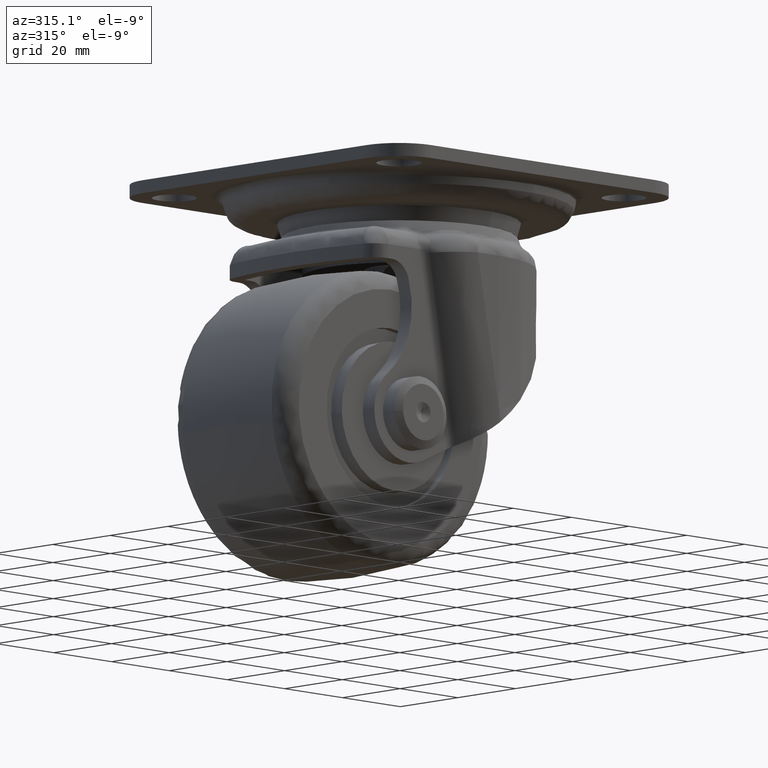
[diagram: clean part render]
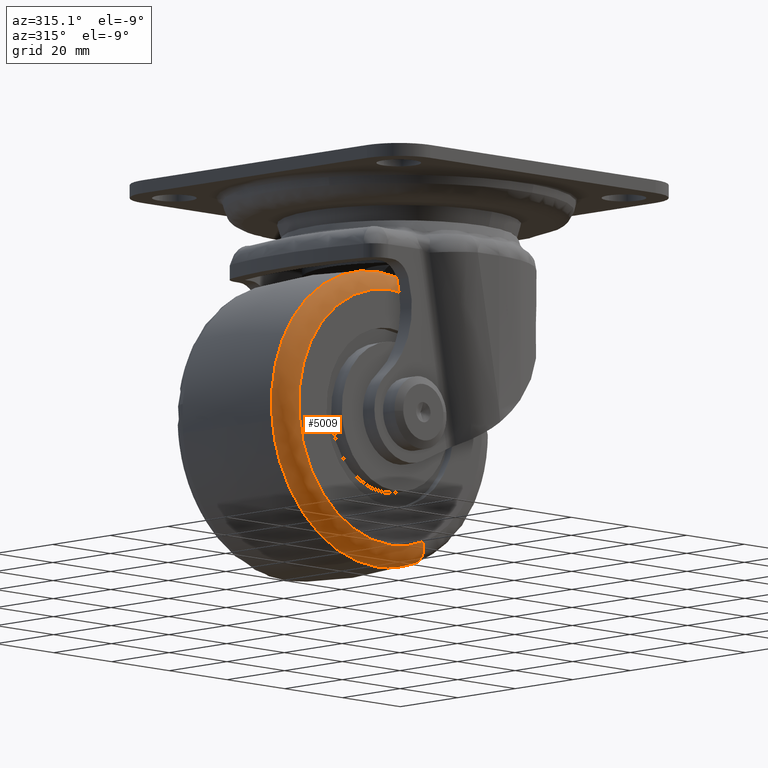
[diagram: same view with one face highlighted and labeled with its STEP entity id]
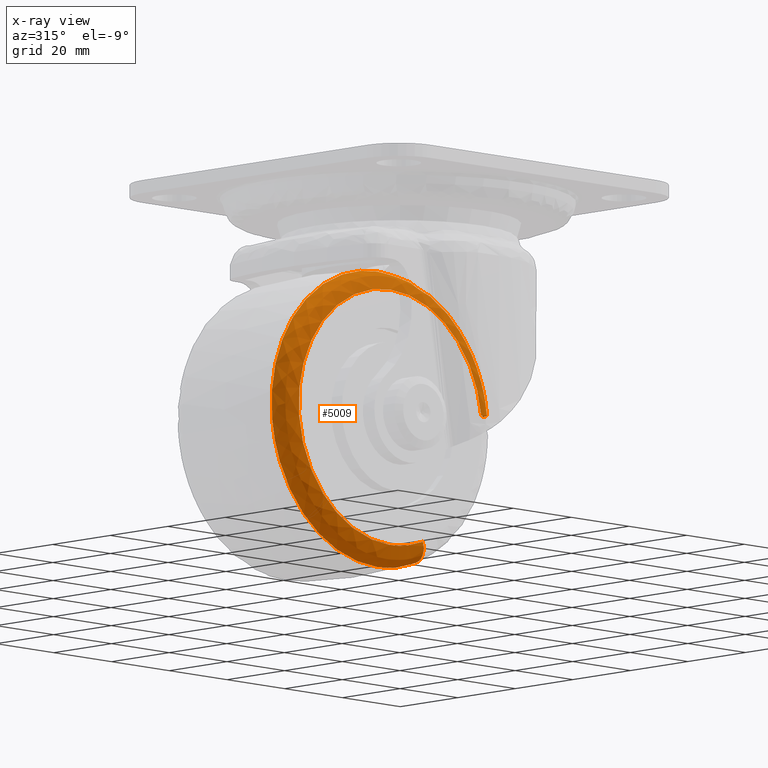
[diagram: x-ray of the same camera — body ghosted, the highlighted face saturated]
A machine part, auxiliary view. The second image highlights one B-rep face of the part: STEP entity #5009.
The next image is the same camera in x-ray: the body ghosted, the highlighted face saturated — about 0% of this face is hidden behind the body in this view.
In plain terms, the highlighted face is a freeform B-spline surface patch.
Its self-contained STEP definition (entity closure, byte-faithful):
#4833=CARTESIAN_POINT('',(11.115937061219032,-19.989068047017039,-91.857588027887104));
#4834=CARTESIAN_POINT('',(7.631200202151816,-19.989068047017046,-93.177046409941710));
#4835=CARTESIAN_POINT('',(3.934409698692773,-19.989068047017035,-93.644059656489191));
#4836=CARTESIAN_POINT('',(-27.209649957796408,-19.989068047017042,-97.578469355181980));
#4837=CARTESIAN_POINT('',(-31.144059656489194,-19.989068047017035,-66.434409698692775));
#4838=CARTESIAN_POINT('',(-35.078469355181966,-19.989068047017042,-35.290350042203592));
#4839=CARTESIAN_POINT('',(-3.934409698692778,-19.989068047017035,-31.355940343510809));
#4840=CARTESIAN_POINT('',(27.209649957796408,-19.989068047017042,-27.421530644818034));
#4841=CARTESIAN_POINT('',(31.144059656489194,-19.989068047017035,-58.565590301307232));
#4842=CARTESIAN_POINT('',(12.933482007921048,-20.329040989270091,-96.657789349069702));
#4843=CARTESIAN_POINT('',(8.878962697414757,-20.329040989270087,-98.192989769018112));
#4844=CARTESIAN_POINT('',(4.577717269321483,-20.329040989270080,-98.736363430493313));
#4845=CARTESIAN_POINT('',(-31.658646161171827,-20.329040989270084,-103.314080699814800));
#4846=CARTESIAN_POINT('',(-36.236363430493320,-20.329040989270080,-67.077717269321468));
#4847=CARTESIAN_POINT('',(-40.814080699814788,-20.329040989270084,-30.841353838828176));
#4848=CARTESIAN_POINT('',(-4.577717269321486,-20.329040989270080,-26.263636569506669));
#4849=CARTESIAN_POINT('',(31.658646161171827,-20.329040989270084,-21.685919300185191));
#4850=CARTESIAN_POINT('',(36.236363430493320,-20.329040989270080,-57.922282730678496));
#4851=CARTESIAN_POINT('',(13.002219455426241,-15.188680782614982,-96.839327410578392));
#4852=CARTESIAN_POINT('',(8.926151631681668,-15.188680782614982,-98.382686944848189));
#4853=CARTESIAN_POINT('',(4.602046417520002,-15.188680782614981,-98.928948468888791));
#4854=CARTESIAN_POINT('',(-31.826902051368769,-15.188680782614984,-103.530994886408780));
#4855=CARTESIAN_POINT('',(-36.428948468888791,-15.188680782614981,-67.102046417520015));
#4856=CARTESIAN_POINT('',(-41.030994886408777,-15.188680782614984,-30.673097948631227));
#4857=CARTESIAN_POINT('',(-4.602046417520007,-15.188680782614981,-26.071051531111220));
#4858=CARTESIAN_POINT('',(31.826902051368769,-15.188680782614984,-21.469005113591223));
#4859=CARTESIAN_POINT('',(36.428948468888791,-15.188680782614981,-57.897953582479992));
#4867=(BOUNDED_SURFACE()B_SPLINE_SURFACE(2,2,((#4833,#4842,#4851),(#4834,#4843,#4852),(#4835,#4844,#4853),(#4836,#4845,#4854),(#4837,#4846,#4855),(#4838,#4847,#4856),(#4839,#4848,#4857),(#4840,#4849,#4858),(#4841,#4850,#4859)),.UNSPECIFIED.,.F.,.F.,.U.)B_SPLINE_SURFACE_WITH_KNOTS((3,2,2,2,3),(3,3),(0.0,9.733948382419614,70.571125772542146,131.408303162664710,192.245480552787200),(0.0,8.451082989407627),.UNSPECIFIED.)GEOMETRIC_REPRESENTATION_ITEM()RATIONAL_B_SPLINE_SURFACE(((0.840444799128825,0.586928940874387,0.843723086104946),(0.869515823441516,0.607230839973135,0.872907506515139),(0.912267329783709,0.637086573941883,0.915825771824246),(0.645070415145005,0.450488236637210,0.647586613642328),(0.912267329783709,0.637086573941883,0.915825771824246),(0.645070415145005,0.450488236637210,0.647586613642328),(0.912267329783709,0.637086573941883,0.915825771824246),(0.645070415145005,0.450488236637210,0.647586613642328),(0.912267329783709,0.637086573941883,0.915825771824246)))REPRESENTATION_ITEM('')SURFACE());
#4868=CARTESIAN_POINT('',(11.232952755055830,-20.0,-92.166630667084220));
#4869=VERTEX_POINT('',#4868);
#4870=CARTESIAN_POINT('',(0.0,-20.0,-94.222046000000091));
#4871=VERTEX_POINT('',#4870);
#4872=CARTESIAN_POINT('',(11.232952755055837,-20.000000000000004,-92.166630667084220));
#4873=CARTESIAN_POINT('',(5.804527208199742,-20.0,-94.222046000000091));
#4874=CARTESIAN_POINT('',(0.0,-20.0,-94.222046000000091));
#4882=(BOUNDED_CURVE()B_SPLINE_CURVE(2,(#4872,#4873,#4874),.UNSPECIFIED.,.F.,.U.)B_SPLINE_CURVE_WITH_KNOTS((3,3),(0.439864366381399,0.500000000000000),.UNSPECIFIED.)CURVE()GEOMETRIC_REPRESENTATION_ITEM()RATIONAL_B_SPLINE_CURVE((0.892987465344108,0.929546722816247,1.0))REPRESENTATION_ITEM(''));
#4883=EDGE_CURVE('',#4869,#4871,#4882,.T.);
#4884=ORIENTED_EDGE('',*,*,#4883,.T.);
#4885=CARTESIAN_POINT('',(0.0,-20.0,-30.777953999999909));
#4886=VERTEX_POINT('',#4885);
#4887=CARTESIAN_POINT('',(0.0,-20.0,-94.222046000000091));
#4888=CARTESIAN_POINT('',(-31.722046000000088,-19.999999999999996,-94.222046000000091));
#4889=CARTESIAN_POINT('',(-31.722046000000098,-20.0,-62.500000000000000));
#4890=CARTESIAN_POINT('',(-31.722046000000088,-19.999999999999996,-30.777953999999905));
#4891=CARTESIAN_POINT('',(0.0,-20.0,-30.777953999999909));
#4899=(BOUNDED_CURVE()B_SPLINE_CURVE(2,(#4887,#4888,#4889,#4890,#4891),.UNSPECIFIED.,.F.,.U.)B_SPLINE_CURVE_WITH_KNOTS((3,2,3),(0.500000000000000,0.750000000000000,1.0),.UNSPECIFIED.)CURVE()GEOMETRIC_REPRESENTATION_ITEM()RATIONAL_B_SPLINE_CURVE((1.0,0.707106781186548,1.0,0.707106781186548,1.0))REPRESENTATION_ITEM(''));
#4900=EDGE_CURVE('',#4871,#4886,#4899,.T.);
#4901=ORIENTED_EDGE('',*,*,#4900,.T.);
#4902=CARTESIAN_POINT('',(31.471908198080541,-20.0,-58.524173398414412));
#4903=VERTEX_POINT('',#4902);
#4904=CARTESIAN_POINT('',(0.0,-20.0,-30.777953999999909));
#4905=CARTESIAN_POINT('',(27.966745540679039,-20.000000000000007,-30.777953999999905));
#4906=CARTESIAN_POINT('',(31.471908198080541,-20.000000000000004,-58.524173398414405));
#4914=(BOUNDED_CURVE()B_SPLINE_CURVE(2,(#4904,#4905,#4906),.UNSPECIFIED.,.F.,.U.)B_SPLINE_CURVE_WITH_KNOTS((3,3),(0.0,0.228321256477232),.UNSPECIFIED.)CURVE()GEOMETRIC_REPRESENTATION_ITEM()RATIONAL_B_SPLINE_CURVE((1.0,0.732505009067407,0.953608357583577))REPRESENTATION_ITEM(''));
#4915=EDGE_CURVE('',#4886,#4903,#4914,.T.);
#4916=ORIENTED_EDGE('',*,*,#4915,.T.);
#4917=CARTESIAN_POINT('',(36.405869162981652,-15.517249322075170,-57.900869176843671));
#4918=VERTEX_POINT('',#4917);
#4919=CARTESIAN_POINT('',(31.471908198080545,-20.0,-58.524173398414412));
#4920=CARTESIAN_POINT('',(35.943303062685651,-20.000000123375205,-57.959304864582997));
#4921=CARTESIAN_POINT('',(36.405869162981645,-15.517249322075168,-57.900869176843671));
#4929=(BOUNDED_CURVE()B_SPLINE_CURVE(2,(#4919,#4920,#4921),.UNSPECIFIED.,.F.,.U.)B_SPLINE_CURVE_WITH_KNOTS((3,3),(-1.709105729701038,-0.280801625540067),.UNSPECIFIED.)CURVE()GEOMETRIC_REPRESENTATION_ITEM()RATIONAL_B_SPLINE_CURVE((0.888415796562370,0.661099642869180,0.891651169076073))REPRESENTATION_ITEM(''));
#4930=EDGE_CURVE('',#4903,#4918,#4929,.T.);
#4931=ORIENTED_EDGE('',*,*,#4930,.T.);
#4932=CARTESIAN_POINT('',(0.0,-15.517248015191800,-25.804775498560051));
#4933=VERTEX_POINT('',#4932);
#4934=CARTESIAN_POINT('',(0.0,-15.517248015191800,-25.804775498560051));
#4935=CARTESIAN_POINT('',(32.351191039134093,-15.517247881360460,-25.804775659838100));
#4936=CARTESIAN_POINT('',(36.405869162981645,-15.517249322075170,-57.900869176843671));
#4944=(BOUNDED_CURVE()B_SPLINE_CURVE(2,(#4934,#4935,#4936),.UNSPECIFIED.,.F.,.U.)B_SPLINE_CURVE_WITH_KNOTS((3,3),(0.0,0.228321257227901),.UNSPECIFIED.)CURVE()GEOMETRIC_REPRESENTATION_ITEM()RATIONAL_B_SPLINE_CURVE((1.0,0.732505008187943,0.953608359037453))REPRESENTATION_ITEM(''));
#4945=EDGE_CURVE('',#4933,#4918,#4944,.T.);
#4946=ORIENTED_EDGE('',*,*,#4945,.F.);
#4947=CARTESIAN_POINT('',(-36.449793876648862,-15.517253867070529,-66.736978037823619));
#4948=VERTEX_POINT('',#4947);
#4949=CARTESIAN_POINT('',(-36.449793876648862,-15.517253867070529,-66.736978037823619));
#4950=CARTESIAN_POINT('',(-36.695223912469523,-15.517253716143598,-64.625597341269938));
#4951=CARTESIAN_POINT('',(-36.695223929979399,-15.517253546656450,-62.499999933572582));
#4952=CARTESIAN_POINT('',(-36.695224232260806,-15.517250620717078,-25.804775467270272));
#4953=CARTESIAN_POINT('',(0.0,-15.517248015191800,-25.804775498560051));
#4961=(BOUNDED_CURVE()B_SPLINE_CURVE(2,(#4949,#4950,#4951,#4952,#4953),.UNSPECIFIED.,.F.,.U.)B_SPLINE_CURVE_WITH_KNOTS((3,2,3),(0.730000035775448,0.750000000000000,1.0),.UNSPECIFIED.)CURVE()GEOMETRIC_REPRESENTATION_ITEM()RATIONAL_B_SPLINE_CURVE((0.956886188605427,0.976568584408469,1.0,0.707106781186548,1.0))REPRESENTATION_ITEM(''));
#4962=EDGE_CURVE('',#4948,#4933,#4961,.T.);
#4963=ORIENTED_EDGE('',*,*,#4962,.F.);
#4964=CARTESIAN_POINT('',(0.0,-15.517251615525330,-99.195224126982296));
#4965=VERTEX_POINT('',#4964);
#4966=CARTESIAN_POINT('',(0.0,-15.517251615525330,-99.195224126982296));
#4967=CARTESIAN_POINT('',(-32.676799533740869,-15.517252741297925,-99.195224279073472));
#4968=CARTESIAN_POINT('',(-36.449793876648862,-15.517253867070529,-66.736978037823619));
#4976=(BOUNDED_CURVE()B_SPLINE_CURVE(2,(#4966,#4967,#4968),.UNSPECIFIED.,.F.,.U.)B_SPLINE_CURVE_WITH_KNOTS((3,3),(0.500000000000000,0.730000035775448),.UNSPECIFIED.)CURVE()GEOMETRIC_REPRESENTATION_ITEM()RATIONAL_B_SPLINE_CURVE((1.0,0.730538196778079,0.956886188605427))REPRESENTATION_ITEM(''));
#4977=EDGE_CURVE('',#4965,#4948,#4976,.T.);
#4978=ORIENTED_EDGE('',*,*,#4977,.F.);
#4979=CARTESIAN_POINT('',(12.993956406167220,-15.517251932771419,-96.817581280236965));
#4980=VERTEX_POINT('',#4979);
#4981=CARTESIAN_POINT('',(12.993956406167221,-15.517251932771416,-96.817581280236965));
#4982=CARTESIAN_POINT('',(6.714509091297061,-15.517251832468620,-99.195222927038017));
#4983=CARTESIAN_POINT('',(0.0,-15.517251615525330,-99.195224126982296));
#4991=(BOUNDED_CURVE()B_SPLINE_CURVE(2,(#4981,#4982,#4983),.UNSPECIFIED.,.F.,.U.)B_SPLINE_CURVE_WITH_KNOTS((3,3),(0.439864484046886,0.500000000000000),.UNSPECIFIED.)CURVE()GEOMETRIC_REPRESENTATION_ITEM()RATIONAL_B_SPLINE_CURVE((0.892987608412916,0.929546860669939,1.0))REPRESENTATION_ITEM(''));
#4992=EDGE_CURVE('',#4980,#4965,#4991,.T.);
#4993=ORIENTED_EDGE('',*,*,#4992,.F.);
#4994=CARTESIAN_POINT('',(11.232952755055832,-20.000000000000007,-92.166630667084220));
#4995=CARTESIAN_POINT('',(12.828869319624534,-20.000000120937084,-96.381541930463229));
#4996=CARTESIAN_POINT('',(12.993956406167211,-15.517251932771412,-96.817581280236965));
#5004=(BOUNDED_CURVE()B_SPLINE_CURVE(2,(#4994,#4995,#4996),.UNSPECIFIED.,.F.,.U.)B_SPLINE_CURVE_WITH_KNOTS((3,3),(-1.709105730102363,-0.280802188276015),.UNSPECIFIED.)CURVE()GEOMETRIC_REPRESENTATION_ITEM()RATIONAL_B_SPLINE_CURVE((0.818471090013851,0.609051550605110,0.821451575144848))REPRESENTATION_ITEM(''));
#5005=EDGE_CURVE('',#4869,#4980,#5004,.T.);
#5006=ORIENTED_EDGE('',*,*,#5005,.F.);
#5007=EDGE_LOOP('',(#4884,#4901,#4916,#4931,#4946,#4963,#4978,#4993,#5006));
#5008=FACE_OUTER_BOUND('',#5007,.T.);
#5009=ADVANCED_FACE('',(#5008),#4867,.T.);